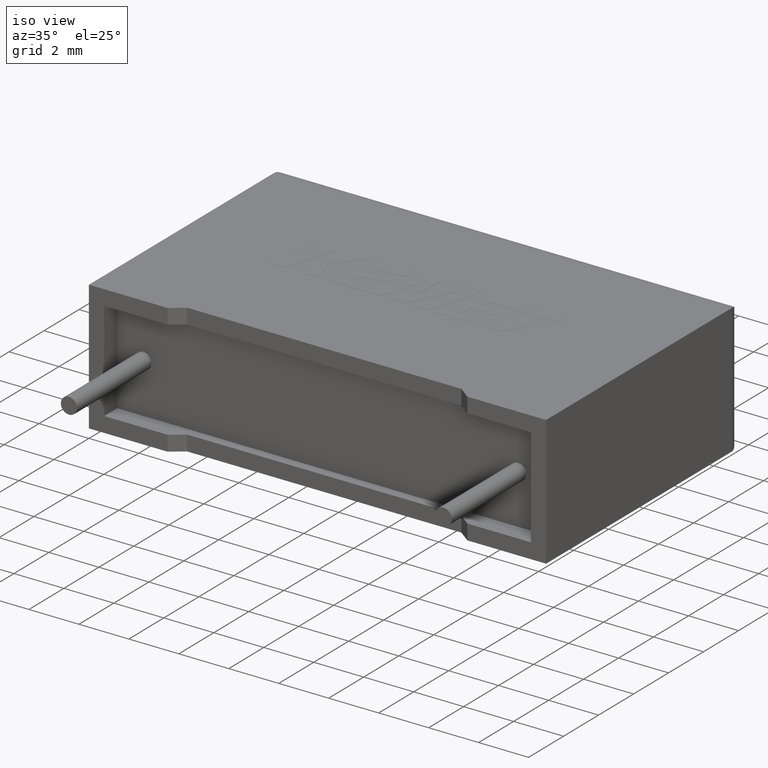
[diagram: clean part render]
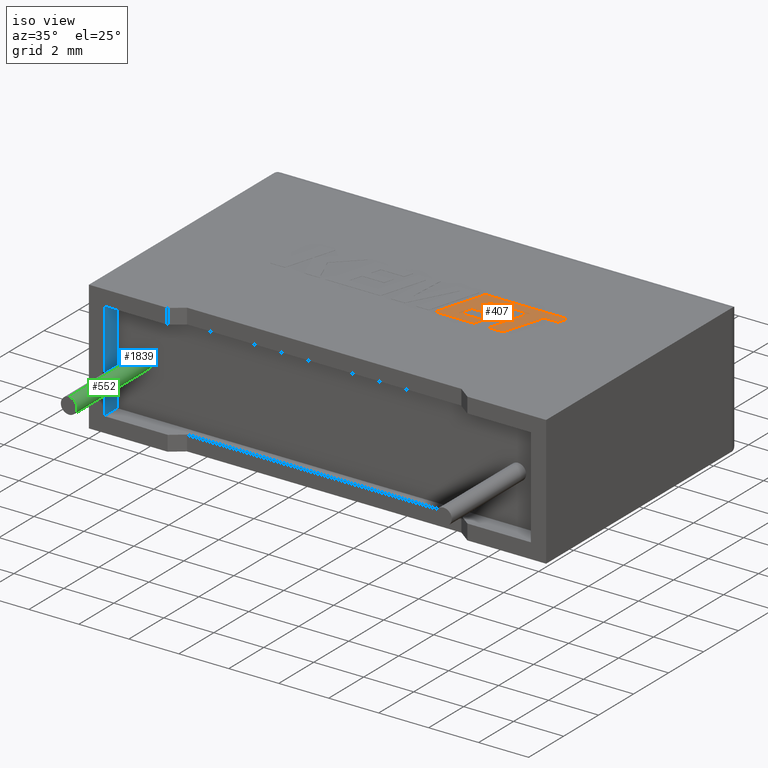
[diagram: same view with three faces highlighted in distinct colors, each labeled with its STEP entity id]
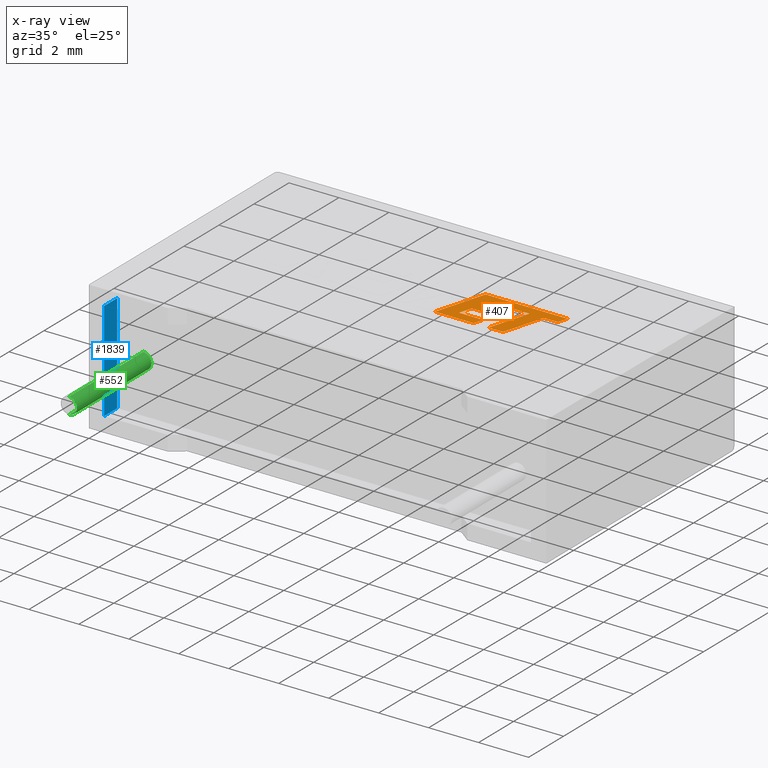
[diagram: x-ray of the same camera — body ghosted, the three highlighted faces saturated]
A machine part, iso view with three faces highlighted in distinct colors.
The next image is the same camera in x-ray (body ghosted, the three faces saturated) — at least one of them is partly hidden behind the body in this view.
Their STEP definitions:

[orange] entity #407 — the highlighted planar face has unit normal (0, 0, 1).
#24 = VECTOR ( 'NONE', #1522, 1000.000000000000114 ) ;
#45 = CARTESIAN_POINT ( 'NONE',  ( 13.12567068899881484, 6.430314398261846698, 5.204999999999999183 ) ) ;
#49 = LINE ( 'NONE', #998, #2826 ) ;
#61 = PLANE ( 'NONE',  #213 ) ;
#98 = ORIENTED_EDGE ( 'NONE', *, *, #1455, .T. ) ;
#142 = CARTESIAN_POINT ( 'NONE',  ( 12.22367982283139831, 5.675740615353348062, 5.204999999999999183 ) ) ;
#164 = ORIENTED_EDGE ( 'NONE', *, *, #1027, .T. ) ;
#183 = CARTESIAN_POINT ( 'NONE',  ( 10.50429790819972276, 4.776329999999935794, 5.204999999999999183 ) ) ;
#213 = AXIS2_PLACEMENT_3D ( 'NONE', #504, #2162, #1465 ) ;
#222 = CARTESIAN_POINT ( 'NONE',  ( 10.50429790819972276, 4.776329999999935794, 5.204999999999999183 ) ) ;
#283 = LINE ( 'NONE', #2157, #1463 ) ;
#304 = DIRECTION ( 'NONE',  ( -1.000000000000000000, 0.000000000000000000, 0.000000000000000000 ) ) ;
#383 = VERTEX_POINT ( 'NONE', #1104 ) ;
#397 = CARTESIAN_POINT ( 'NONE',  ( 14.27063427908935722, 6.430269845156268538, 5.204999999999999183 ) ) ;
#407 = ADVANCED_FACE ( 'NONE', ( #971 ), #61, .T. ) ;
#440 = LINE ( 'NONE', #397, #2783 ) ;
#456 = CARTESIAN_POINT ( 'NONE',  ( 14.27063427908935722, 6.430269845156268538, 5.204999999999999183 ) ) ;
#457 = EDGE_CURVE ( 'NONE', #2800, #1996, #1923, .T. ) ;
#480 = EDGE_CURVE ( 'NONE', #578, #830, #747, .T. ) ;
#502 = ORIENTED_EDGE ( 'NONE', *, *, #2918, .T. ) ;
#504 = CARTESIAN_POINT ( 'NONE',  ( -0.2224830842431323175, -1.858056502638177898, 5.204999999999997407 ) ) ;
#578 = VERTEX_POINT ( 'NONE', #142 ) ;
#590 = LINE ( 'NONE', #2670, #1355 ) ;
#594 = EDGE_CURVE ( 'NONE', #891, #2656, #2413, .T. ) ;
#668 = VECTOR ( 'NONE', #2584, 1000.000000000000227 ) ;
#715 = ORIENTED_EDGE ( 'NONE', *, *, #3019, .T. ) ;
#719 = DIRECTION ( 'NONE',  ( -1.000000000000000000, 0.000000000000000000, 0.000000000000000000 ) ) ;
#726 = EDGE_CURVE ( 'NONE', #2156, #1231, #440, .T. ) ;
#740 = EDGE_CURVE ( 'NONE', #2656, #2971, #2262, .T. ) ;
#747 = LINE ( 'NONE', #2585, #1610 ) ;
#749 = CARTESIAN_POINT ( 'NONE',  ( 11.19874686118522611, 5.166371682003308763, 5.204999999999999183 ) ) ;
#830 = VERTEX_POINT ( 'NONE', #1475 ) ;
#850 = ORIENTED_EDGE ( 'NONE', *, *, #1464, .T. ) ;
#873 = VECTOR ( 'NONE', #2792, 1000.000000000000000 ) ;
#884 = VECTOR ( 'NONE', #304, 1000.000000000000000 ) ;
#891 = VERTEX_POINT ( 'NONE', #45 ) ;
#903 = CARTESIAN_POINT ( 'NONE',  ( 11.09387898802017780, 6.826083738474082452, 5.204999999999999183 ) ) ;
#953 = EDGE_CURVE ( 'NONE', #2007, #1986, #283, .T. ) ;
#966 = VECTOR ( 'NONE', #1666, 1000.000000000000114 ) ;
#971 = FACE_OUTER_BOUND ( 'NONE', #1334, .T. ) ;
#974 = DIRECTION ( 'NONE',  ( 0.2745159998572630489, 0.9615825319869153454, 0.000000000000000000 ) ) ;
#998 = CARTESIAN_POINT ( 'NONE',  ( 12.33191324218054241, 6.054601210504160669, 5.204999999999999183 ) ) ;
#1006 = ORIENTED_EDGE ( 'NONE', *, *, #2595, .T. ) ;
#1008 = EDGE_CURVE ( 'NONE', #2197, #383, #590, .T. ) ;
#1013 = CARTESIAN_POINT ( 'NONE',  ( 12.05294699491182442, 4.776329999999936682, 5.204999999999999183 ) ) ;
#1015 = DIRECTION ( 'NONE',  ( 0.9999999968487351953, -7.938847109813994231E-05, 0.000000000000000000 ) ) ;
#1027 = EDGE_CURVE ( 'NONE', #2971, #1287, #2224, .T. ) ;
#1048 = LINE ( 'NONE', #1580, #1957 ) ;
#1071 = VECTOR ( 'NONE', #1015, 1000.000000000000227 ) ;
#1104 = CARTESIAN_POINT ( 'NONE',  ( 12.50252142030273994, 6.433212506058688440, 5.204999999999999183 ) ) ;
#1226 = VECTOR ( 'NONE', #2323, 1000.000000000000000 ) ;
#1231 = VERTEX_POINT ( 'NONE', #2955 ) ;
#1240 = VERTEX_POINT ( 'NONE', #2464 ) ;
#1275 = ORIENTED_EDGE ( 'NONE', *, *, #2185, .T. ) ;
#1287 = VERTEX_POINT ( 'NONE', #2219 ) ;
#1321 = ORIENTED_EDGE ( 'NONE', *, *, #3040, .T. ) ;
#1334 = EDGE_LOOP ( 'NONE', ( #2649, #98, #2929, #3051, #164, #1275, #2864, #1006, #2659, #715, #2758, #1321, #2350, #2145, #2674, #850, #502 ) ) ;
#1337 = CARTESIAN_POINT ( 'NONE',  ( 11.45227208474177516, 6.054601210504160669, 5.204999999999999183 ) ) ;
#1344 = CARTESIAN_POINT ( 'NONE',  ( 14.38438434789058462, 6.826083738474082452, 5.204999999999999183 ) ) ;
#1355 = VECTOR ( 'NONE', #1946, 999.9999999999998863 ) ;
#1389 = LINE ( 'NONE', #2558, #1907 ) ;
#1455 = EDGE_CURVE ( 'NONE', #383, #891, #2845, .T. ) ;
#1463 = VECTOR ( 'NONE', #2625, 1000.000000000000000 ) ;
#1464 = EDGE_CURVE ( 'NONE', #830, #1701, #49, .T. ) ;
#1465 = DIRECTION ( 'NONE',  ( 1.000000000000000000, 0.000000000000000000, 0.000000000000000000 ) ) ;
#1469 = LINE ( 'NONE', #1892, #884 ) ;
#1475 = CARTESIAN_POINT ( 'NONE',  ( 12.33191324218054241, 6.054601210504160669, 5.204999999999999183 ) ) ;
#1508 = CARTESIAN_POINT ( 'NONE',  ( 13.12567068899881484, 6.430314398261846698, 5.204999999999999183 ) ) ;
#1513 = CARTESIAN_POINT ( 'NONE',  ( 13.70943062161937576, 6.430314398256750330, 5.204999999999999183 ) ) ;
#1522 = DIRECTION ( 'NONE',  ( 0.2762437428917223770, 0.9610876102172850599, 0.000000000000000000 ) ) ;
#1540 = CARTESIAN_POINT ( 'NONE',  ( 11.56321040470110617, 6.435855081770759156, 5.204999999999999183 ) ) ;
#1580 = CARTESIAN_POINT ( 'NONE',  ( 11.45227208474177516, 6.054601210504160669, 5.204999999999999183 ) ) ;
#1610 = VECTOR ( 'NONE', #1698, 1000.000000000000114 ) ;
#1637 = DIRECTION ( 'NONE',  ( 0.2793947940814923703, 0.9601763114346033579, 0.000000000000000000 ) ) ;
#1666 = DIRECTION ( 'NONE',  ( 0.2729786930694848013, 0.9620200793798827643, 0.000000000000000000 ) ) ;
#1685 = LINE ( 'NONE', #749, #2483 ) ;
#1688 = VERTEX_POINT ( 'NONE', #2276 ) ;
#1698 = DIRECTION ( 'NONE',  ( 0.2746918797667269874, 0.9615323037684286867, 0.000000000000000000 ) ) ;
#1701 = VERTEX_POINT ( 'NONE', #1337 ) ;
#1833 = DIRECTION ( 'NONE',  ( 0.2762033010290175783, 0.9610992334304890861, 0.000000000000000000 ) ) ;
#1845 = CARTESIAN_POINT ( 'NONE',  ( 12.65013171074643950, 4.776329999999936682, 5.204999999999999183 ) ) ;
#1852 = LINE ( 'NONE', #222, #1226 ) ;
#1892 = CARTESIAN_POINT ( 'NONE',  ( 12.16362355029571773, 5.166371682003308763, 5.204999999999999183 ) ) ;
#1907 = VECTOR ( 'NONE', #3021, 1000.000000000000000 ) ;
#1923 = LINE ( 'NONE', #1013, #966 ) ;
#1946 = DIRECTION ( 'NONE',  ( 0.9999960426590096541, -0.002813301676021314271, 0.000000000000000000 ) ) ;
#1957 = VECTOR ( 'NONE', #1637, 1000.000000000000227 ) ;
#1986 = VERTEX_POINT ( 'NONE', #183 ) ;
#1996 = VERTEX_POINT ( 'NONE', #2974 ) ;
#2007 = VERTEX_POINT ( 'NONE', #903 ) ;
#2064 = LINE ( 'NONE', #1344, #3036 ) ;
#2094 = EDGE_CURVE ( 'NONE', #1240, #1688, #1685, .T. ) ;
#2145 = ORIENTED_EDGE ( 'NONE', *, *, #2627, .T. ) ;
#2156 = VERTEX_POINT ( 'NONE', #456 ) ;
#2157 = CARTESIAN_POINT ( 'NONE',  ( 11.09387898802017780, 6.826083738474082452, 5.204999999999999183 ) ) ;
#2162 = DIRECTION ( 'NONE',  ( 0.000000000000000000, 0.000000000000000000, 1.000000000000000000 ) ) ;
#2172 = CARTESIAN_POINT ( 'NONE',  ( 13.23402875814547563, 4.776329999999936682, 5.204999999999999183 ) ) ;
#2185 = EDGE_CURVE ( 'NONE', #1287, #2156, #2660, .T. ) ;
#2197 = VERTEX_POINT ( 'NONE', #1540 ) ;
#2219 = CARTESIAN_POINT ( 'NONE',  ( 13.70943062161937576, 6.430314398256750330, 5.204999999999999183 ) ) ;
#2224 = LINE ( 'NONE', #2172, #24 ) ;
#2262 = LINE ( 'NONE', #1845, #873 ) ;
#2276 = CARTESIAN_POINT ( 'NONE',  ( 11.34416331519035737, 5.675740615353348062, 5.204999999999999183 ) ) ;
#2323 = DIRECTION ( 'NONE',  ( 1.000000000000000000, 5.694109626320595965E-16, 0.000000000000000000 ) ) ;
#2350 = ORIENTED_EDGE ( 'NONE', *, *, #2094, .T. ) ;
#2413 = LINE ( 'NONE', #1508, #2430 ) ;
#2430 = VECTOR ( 'NONE', #2657, 1000.000000000000000 ) ;
#2464 = CARTESIAN_POINT ( 'NONE',  ( 11.19874686118522611, 5.166371682003308763, 5.204999999999999183 ) ) ;
#2483 = VECTOR ( 'NONE', #974, 1000.000000000000114 ) ;
#2558 = CARTESIAN_POINT ( 'NONE',  ( 11.34416331519035737, 5.675740615353348062, 5.204999999999999183 ) ) ;
#2584 = DIRECTION ( 'NONE',  ( 0.9999891854650020395, -0.004650693823678666086, 0.000000000000000000 ) ) ;
#2585 = CARTESIAN_POINT ( 'NONE',  ( 12.22367982283139831, 5.675740615353348062, 5.204999999999999183 ) ) ;
#2595 = EDGE_CURVE ( 'NONE', #1231, #2007, #2064, .T. ) ;
#2598 = CARTESIAN_POINT ( 'NONE',  ( 12.50252142030273994, 6.433212506058688440, 5.204999999999999183 ) ) ;
#2625 = DIRECTION ( 'NONE',  ( -0.2764273280489764617, -0.9610348236706636182, 0.000000000000000000 ) ) ;
#2627 = EDGE_CURVE ( 'NONE', #1688, #578, #1389, .T. ) ;
#2649 = ORIENTED_EDGE ( 'NONE', *, *, #1008, .T. ) ;
#2656 = VERTEX_POINT ( 'NONE', #2788 ) ;
#2657 = DIRECTION ( 'NONE',  ( -0.2763173343569615414, -0.9610664548999008350, 0.000000000000000000 ) ) ;
#2659 = ORIENTED_EDGE ( 'NONE', *, *, #953, .T. ) ;
#2660 = LINE ( 'NONE', #1513, #1071 ) ;
#2670 = CARTESIAN_POINT ( 'NONE',  ( 11.56321040470110617, 6.435855081770759156, 5.204999999999999183 ) ) ;
#2674 = ORIENTED_EDGE ( 'NONE', *, *, #480, .T. ) ;
#2758 = ORIENTED_EDGE ( 'NONE', *, *, #457, .T. ) ;
#2765 = DIRECTION ( 'NONE',  ( -1.000000000000000000, 0.000000000000000000, 0.000000000000000000 ) ) ;
#2783 = VECTOR ( 'NONE', #1833, 1000.000000000000114 ) ;
#2788 = CARTESIAN_POINT ( 'NONE',  ( 12.65013171074643950, 4.776329999999936682, 5.204999999999999183 ) ) ;
#2792 = DIRECTION ( 'NONE',  ( 1.000000000000000000, 0.000000000000000000, 0.000000000000000000 ) ) ;
#2800 = VERTEX_POINT ( 'NONE', #2923 ) ;
#2826 = VECTOR ( 'NONE', #719, 1000.000000000000000 ) ;
#2845 = LINE ( 'NONE', #2598, #668 ) ;
#2864 = ORIENTED_EDGE ( 'NONE', *, *, #726, .T. ) ;
#2918 = EDGE_CURVE ( 'NONE', #1701, #2197, #1048, .T. ) ;
#2923 = CARTESIAN_POINT ( 'NONE',  ( 12.05294699491182442, 4.776329999999936682, 5.204999999999999183 ) ) ;
#2929 = ORIENTED_EDGE ( 'NONE', *, *, #594, .T. ) ;
#2955 = CARTESIAN_POINT ( 'NONE',  ( 14.38438434789058462, 6.826083738474082452, 5.204999999999999183 ) ) ;
#2971 = VERTEX_POINT ( 'NONE', #2990 ) ;
#2974 = CARTESIAN_POINT ( 'NONE',  ( 12.16362355029571773, 5.166371682003308763, 5.204999999999999183 ) ) ;
#2990 = CARTESIAN_POINT ( 'NONE',  ( 13.23402875814547563, 4.776329999999936682, 5.204999999999999183 ) ) ;
#3019 = EDGE_CURVE ( 'NONE', #1986, #2800, #1852, .T. ) ;
#3021 = DIRECTION ( 'NONE',  ( 1.000000000000000000, 1.002616505299178603E-15, 0.000000000000000000 ) ) ;
#3036 = VECTOR ( 'NONE', #2765, 1000.000000000000000 ) ;
#3040 = EDGE_CURVE ( 'NONE', #1996, #1240, #1469, .T. ) ;
#3051 = ORIENTED_EDGE ( 'NONE', *, *, #740, .T. ) ;

[blue] entity #1839 — the highlighted planar face has unit normal (-1, 0, -0).
#8 = DIRECTION ( 'NONE',  ( -1.000000000000000000, 0.000000000000000000, -1.906888184612607509E-16 ) ) ;
#19 = DIRECTION ( 'NONE',  ( -0.000000000000000000, -1.000000000000000000, -0.000000000000000000 ) ) ;
#189 = EDGE_CURVE ( 'NONE', #1906, #2048, #1418, .T. ) ;
#240 = CARTESIAN_POINT ( 'NONE',  ( 0.6099999390000000465, 0.7500000000000000000, 0.6099999390000000465 ) ) ;
#247 = CARTESIAN_POINT ( 'NONE',  ( 0.6099999389999992694, 0.7500000000000000000, 4.590000060999996911 ) ) ;
#256 = CARTESIAN_POINT ( 'NONE',  ( 0.6099999389999992694, 0.000000000000000000, 4.590000060999996911 ) ) ;
#446 = CARTESIAN_POINT ( 'NONE',  ( 0.6099999389999992694, 0.7500000000000000000, 4.590000060999996911 ) ) ;
#499 = CARTESIAN_POINT ( 'NONE',  ( 0.6099999389999992694, 0.7500000000000000000, 4.590000060999996911 ) ) ;
#676 = LINE ( 'NONE', #1556, #924 ) ;
#816 = EDGE_CURVE ( 'NONE', #1906, #1285, #1883, .T. ) ;
#924 = VECTOR ( 'NONE', #2026, 1000.000000000000000 ) ;
#972 = VECTOR ( 'NONE', #19, 1000.000000000000000 ) ;
#1124 = ORIENTED_EDGE ( 'NONE', *, *, #816, .F. ) ;
#1256 = CARTESIAN_POINT ( 'NONE',  ( 0.6099999389999992694, 0.7500000000000000000, 4.590000060999996911 ) ) ;
#1267 = VECTOR ( 'NONE', #2816, 1000.000000000000000 ) ;
#1285 = VERTEX_POINT ( 'NONE', #2027 ) ;
#1418 = LINE ( 'NONE', #446, #2775 ) ;
#1498 = EDGE_LOOP ( 'NONE', ( #2559, #2774, #1124, #2077 ) ) ;
#1504 = DIRECTION ( 'NONE',  ( -1.906888184612607509E-16, 0.000000000000000000, 1.000000000000000000 ) ) ;
#1556 = CARTESIAN_POINT ( 'NONE',  ( 0.6099999389999992694, 0.000000000000000000, 4.590000060999996911 ) ) ;
#1658 = AXIS2_PLACEMENT_3D ( 'NONE', #247, #8, #1504 ) ;
#1662 = VERTEX_POINT ( 'NONE', #2295 ) ;
#1839 = ADVANCED_FACE ( 'NONE', ( #2173 ), #2870, .F. ) ;
#1883 = LINE ( 'NONE', #499, #1267 ) ;
#1906 = VERTEX_POINT ( 'NONE', #1256 ) ;
#2026 = DIRECTION ( 'NONE',  ( 1.906888184612607755E-16, 0.000000000000000000, -1.000000000000000000 ) ) ;
#2027 = CARTESIAN_POINT ( 'NONE',  ( 0.6099999390000000465, 0.7500000000000000000, 0.6099999390000000465 ) ) ;
#2048 = VERTEX_POINT ( 'NONE', #256 ) ;
#2076 = EDGE_CURVE ( 'NONE', #1285, #1662, #2861, .T. ) ;
#2077 = ORIENTED_EDGE ( 'NONE', *, *, #189, .T. ) ;
#2173 = FACE_OUTER_BOUND ( 'NONE', #1498, .T. ) ;
#2259 = EDGE_CURVE ( 'NONE', #2048, #1662, #676, .T. ) ;
#2295 = CARTESIAN_POINT ( 'NONE',  ( 0.6099999390000000465, 0.000000000000000000, 0.6099999390000001576 ) ) ;
#2559 = ORIENTED_EDGE ( 'NONE', *, *, #2259, .T. ) ;
#2774 = ORIENTED_EDGE ( 'NONE', *, *, #2076, .F. ) ;
#2775 = VECTOR ( 'NONE', #2824, 1000.000000000000000 ) ;
#2816 = DIRECTION ( 'NONE',  ( 1.906888184612607755E-16, 0.000000000000000000, -1.000000000000000000 ) ) ;
#2824 = DIRECTION ( 'NONE',  ( -0.000000000000000000, -1.000000000000000000, -0.000000000000000000 ) ) ;
#2861 = LINE ( 'NONE', #240, #972 ) ;
#2870 = PLANE ( 'NONE',  #1658 ) ;

[green] entity #552 — the highlighted cylindrical surface (edge-blend (fillet) strip) has radius 0.325 mm, axis along (-0, 1, -0).
#10 = VECTOR ( 'NONE', #170, 1000.000000000000000 ) ;
#90 = CARTESIAN_POINT ( 'NONE',  ( 1.650000000000000355, 0.7500000000000000000, 2.600000000000000089 ) ) ;
#108 = CARTESIAN_POINT ( 'NONE',  ( 1.650000000000000355, 0.7500000000000000000, 2.924999999999999822 ) ) ;
#119 = DIRECTION ( 'NONE',  ( 0.000000000000000000, -1.000000000000000000, 0.000000000000000000 ) ) ;
#170 = DIRECTION ( 'NONE',  ( -0.000000000000000000, 1.000000000000000000, -0.000000000000000000 ) ) ;
#209 = LINE ( 'NONE', #1161, #10 ) ;
#293 = DIRECTION ( 'NONE',  ( -0.000000000000000000, 1.000000000000000000, -0.000000000000000000 ) ) ;
#445 = EDGE_CURVE ( 'NONE', #1785, #2439, #2281, .T. ) ;
#447 = CARTESIAN_POINT ( 'NONE',  ( 1.650000000000000355, 0.7500000000000000000, 2.274999999999999911 ) ) ;
#523 = CARTESIAN_POINT ( 'NONE',  ( 1.650000000000000355, -3.500000000000000444, 2.274999999999999911 ) ) ;
#552 = ADVANCED_FACE ( 'NONE', ( #1244 ), #2175, .T. ) ;
#721 = DIRECTION ( 'NONE',  ( 0.000000000000000000, 0.000000000000000000, -1.000000000000000000 ) ) ;
#734 = CARTESIAN_POINT ( 'NONE',  ( 1.650000000000000355, -3.500000000000000444, 2.600000000000000089 ) ) ;
#791 = DIRECTION ( 'NONE',  ( 0.000000000000000000, 0.000000000000000000, 1.000000000000000000 ) ) ;
#799 = EDGE_CURVE ( 'NONE', #2439, #1279, #209, .T. ) ;
#986 = DIRECTION ( 'NONE',  ( 0.000000000000000000, -1.000000000000000000, 0.000000000000000000 ) ) ;
#1010 = VECTOR ( 'NONE', #293, 1000.000000000000000 ) ;
#1065 = ORIENTED_EDGE ( 'NONE', *, *, #1914, .T. ) ;
#1138 = EDGE_CURVE ( 'NONE', #1785, #2950, #2618, .T. ) ;
#1161 = CARTESIAN_POINT ( 'NONE',  ( 1.650000000000000355, -3.500000000000000444, 2.924999999999999822 ) ) ;
#1214 = CIRCLE ( 'NONE', #2934, 0.3249999999999997891 ) ;
#1244 = FACE_OUTER_BOUND ( 'NONE', #2359, .T. ) ;
#1279 = VERTEX_POINT ( 'NONE', #108 ) ;
#1407 = AXIS2_PLACEMENT_3D ( 'NONE', #2706, #2676, #791 ) ;
#1545 = CARTESIAN_POINT ( 'NONE',  ( 1.650000000000000355, -3.500000000000000444, 2.924999999999999822 ) ) ;
#1570 = ORIENTED_EDGE ( 'NONE', *, *, #445, .F. ) ;
#1694 = CARTESIAN_POINT ( 'NONE',  ( 1.650000000000000355, -3.500000000000000444, 2.274999999999999911 ) ) ;
#1712 = AXIS2_PLACEMENT_3D ( 'NONE', #734, #986, #721 ) ;
#1785 = VERTEX_POINT ( 'NONE', #1694 ) ;
#1855 = ORIENTED_EDGE ( 'NONE', *, *, #799, .F. ) ;
#1869 = ORIENTED_EDGE ( 'NONE', *, *, #1138, .T. ) ;
#1914 = EDGE_CURVE ( 'NONE', #2950, #1279, #1214, .T. ) ;
#2175 = CYLINDRICAL_SURFACE ( 'NONE', #1407, 0.3249999999999997891 ) ;
#2225 = DIRECTION ( 'NONE',  ( 0.000000000000000000, 0.000000000000000000, -1.000000000000000000 ) ) ;
#2281 = CIRCLE ( 'NONE', #1712, 0.3249999999999997891 ) ;
#2359 = EDGE_LOOP ( 'NONE', ( #1570, #1869, #1065, #1855 ) ) ;
#2439 = VERTEX_POINT ( 'NONE', #1545 ) ;
#2618 = LINE ( 'NONE', #523, #1010 ) ;
#2676 = DIRECTION ( 'NONE',  ( -0.000000000000000000, 1.000000000000000000, -0.000000000000000000 ) ) ;
#2706 = CARTESIAN_POINT ( 'NONE',  ( 1.650000000000000355, -3.500000000000000444, 2.600000000000000089 ) ) ;
#2934 = AXIS2_PLACEMENT_3D ( 'NONE', #90, #119, #2225 ) ;
#2950 = VERTEX_POINT ( 'NONE', #447 ) ;